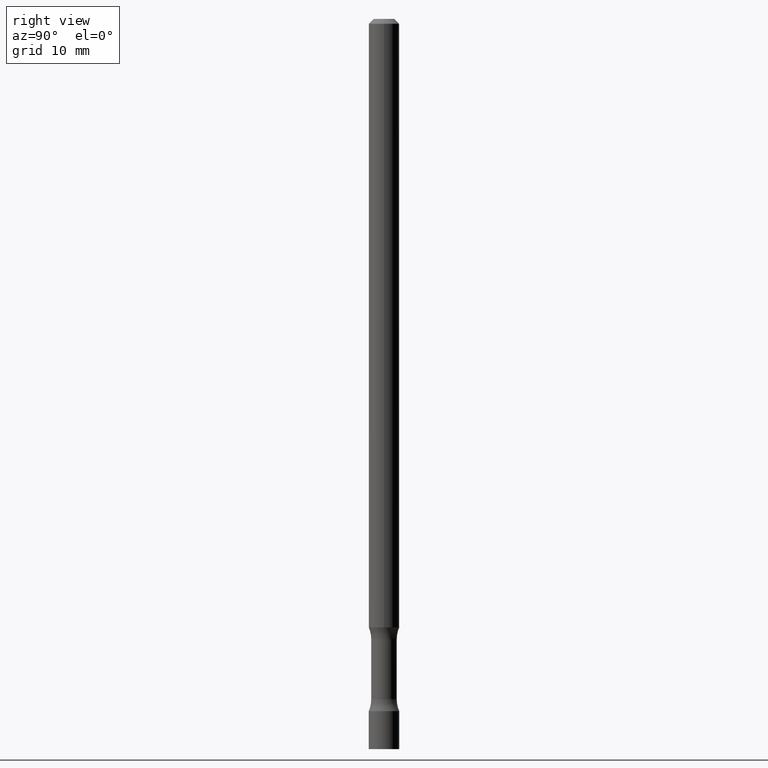
[diagram: clean part render]
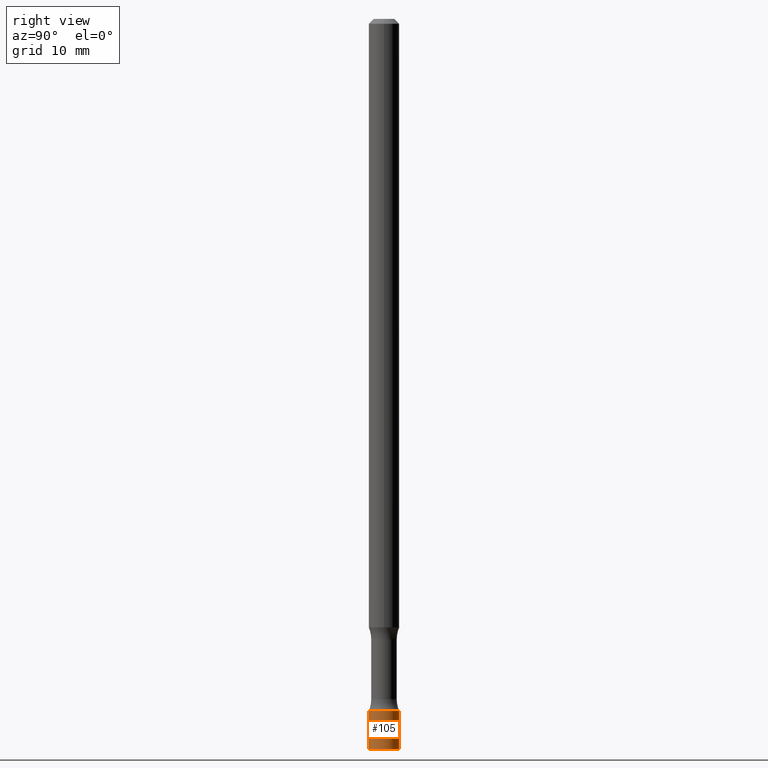
[diagram: same view with one face highlighted and labeled with its STEP entity id]
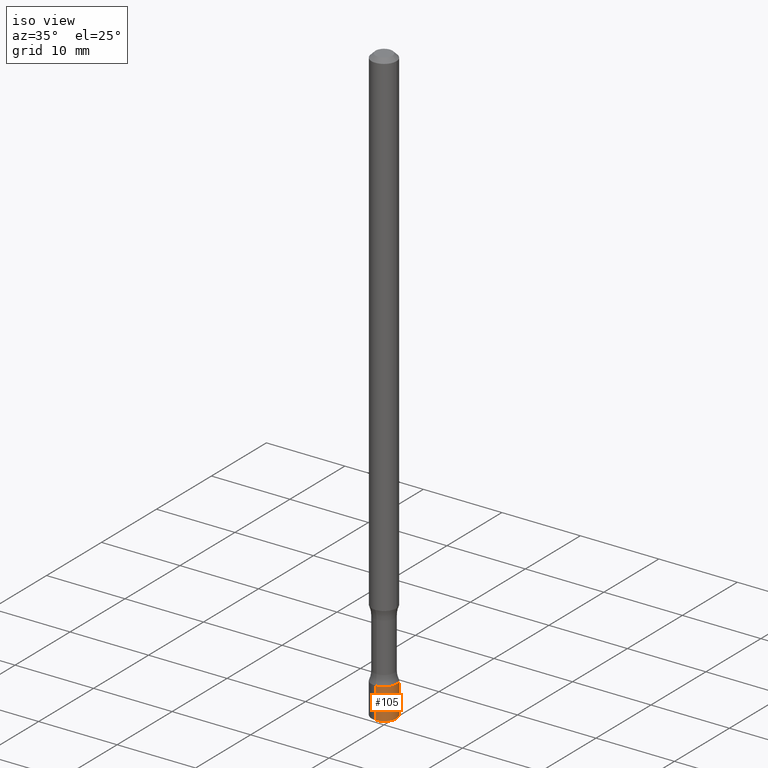
[diagram: same view with one face highlighted and labeled with its STEP entity id]
A machine part, right view. The second image highlights one B-rep face of the part: STEP entity #105.
A second angle (iso view) of the same face is appended — the face is thin or edge-on in the first view.
In plain terms, the highlighted cylindrical surface (edge-blend (fillet) strip) has radius 1.5875 mm, axis along (-0, 0, 1).
Its self-contained STEP definition (entity closure, byte-faithful):
#3 = CARTESIAN_POINT ( 'NONE',  ( 4.440892098500635036E-16, 0.06250000000000012490, -2.176388210955470377E-16 ) ) ;
#17 = CARTESIAN_POINT ( 'NONE',  ( 4.440892098501371635E-16, 0.06249999999999023004, -2.843800000000000328 ) ) ;
#20 = ORIENTED_EDGE ( 'NONE', *, *, #214, .T. ) ;
#28 = VECTOR ( 'NONE', #280, 39.37007874015748143 ) ;
#37 = CIRCLE ( 'NONE', #498, 0.06250000000000012490 ) ;
#46 = AXIS2_PLACEMENT_3D ( 'NONE', #321, #253, #481 ) ;
#86 = VERTEX_POINT ( 'NONE', #17 ) ;
#105 = ADVANCED_FACE ( 'NONE', ( #445 ), #485, .T. ) ;
#131 = CARTESIAN_POINT ( 'NONE',  ( -4.364351673553925076E-16, -0.06250000000000012490, 2.176388210955470377E-16 ) ) ;
#146 = CARTESIAN_POINT ( 'NONE',  ( 7.355805510605304813E-29, -1.044666341258623809E-14, -3.000000000000000444 ) ) ;
#149 = VERTEX_POINT ( 'NONE', #479 ) ;
#157 = LINE ( 'NONE', #3, #221 ) ;
#163 = EDGE_CURVE ( 'NONE', #190, #149, #167, .T. ) ;
#167 = LINE ( 'NONE', #131, #28 ) ;
#183 = ORIENTED_EDGE ( 'NONE', *, *, #163, .F. ) ;
#190 = VERTEX_POINT ( 'NONE', #326 ) ;
#214 = EDGE_CURVE ( 'NONE', #190, #388, #37, .T. ) ;
#221 = VECTOR ( 'NONE', #350, 39.37007874015748143 ) ;
#253 = DIRECTION ( 'NONE',  ( -2.451935170201767991E-29, 3.482221137528745897E-15, 1.000000000000000000 ) ) ;
#257 = DIRECTION ( 'NONE',  ( -6.982962677686265922E-15, -1.000000000000000000, 0.000000000000000000 ) ) ;
#278 = ORIENTED_EDGE ( 'NONE', *, *, #365, .F. ) ;
#280 = DIRECTION ( 'NONE',  ( -2.451935170201767991E-29, 3.482221137528745897E-15, 1.000000000000000000 ) ) ;
#291 = CARTESIAN_POINT ( 'NONE',  ( 6.972813237019788711E-29, -9.902740470904250327E-15, -2.843800000000000328 ) ) ;
#298 = DIRECTION ( 'NONE',  ( -6.982962677686265922E-15, -1.000000000000000000, 0.000000000000000000 ) ) ;
#321 = CARTESIAN_POINT ( 'NONE',  ( 0.000000000000000000, 0.000000000000000000, 0.000000000000000000 ) ) ;
#326 = CARTESIAN_POINT ( 'NONE',  ( -4.364351673553189463E-16, -0.06250000000001057487, -3.000000000000000444 ) ) ;
#344 = CARTESIAN_POINT ( 'NONE',  ( 4.440892098501351914E-16, 0.06249999999998967493, -3.000000000000000444 ) ) ;
#350 = DIRECTION ( 'NONE',  ( -2.451935170201767991E-29, 3.482221137528745897E-15, 1.000000000000000000 ) ) ;
#365 = EDGE_CURVE ( 'NONE', #149, #86, #369, .T. ) ;
#369 = CIRCLE ( 'NONE', #439, 0.06250000000000012490 ) ;
#373 = EDGE_CURVE ( 'NONE', #388, #86, #157, .T. ) ;
#375 = DIRECTION ( 'NONE',  ( -2.451935170201767991E-29, 3.482221137528745897E-15, 1.000000000000000000 ) ) ;
#388 = VERTEX_POINT ( 'NONE', #344 ) ;
#409 = EDGE_LOOP ( 'NONE', ( #20, #415, #278, #183 ) ) ;
#415 = ORIENTED_EDGE ( 'NONE', *, *, #373, .T. ) ;
#439 = AXIS2_PLACEMENT_3D ( 'NONE', #291, #450, #257 ) ;
#445 = FACE_OUTER_BOUND ( 'NONE', #409, .T. ) ;
#450 = DIRECTION ( 'NONE',  ( -2.451935170201767991E-29, 3.482221137528745897E-15, 1.000000000000000000 ) ) ;
#479 = CARTESIAN_POINT ( 'NONE',  ( -4.364351673553227427E-16, -0.06250000000001003364, -2.843800000000000328 ) ) ;
#481 = DIRECTION ( 'NONE',  ( -6.982962677686265922E-15, -1.000000000000000000, 3.482221137528745503E-15 ) ) ;
#485 = CYLINDRICAL_SURFACE ( 'NONE', #46, 0.06250000000000012490 ) ;
#498 = AXIS2_PLACEMENT_3D ( 'NONE', #146, #375, #298 ) ;